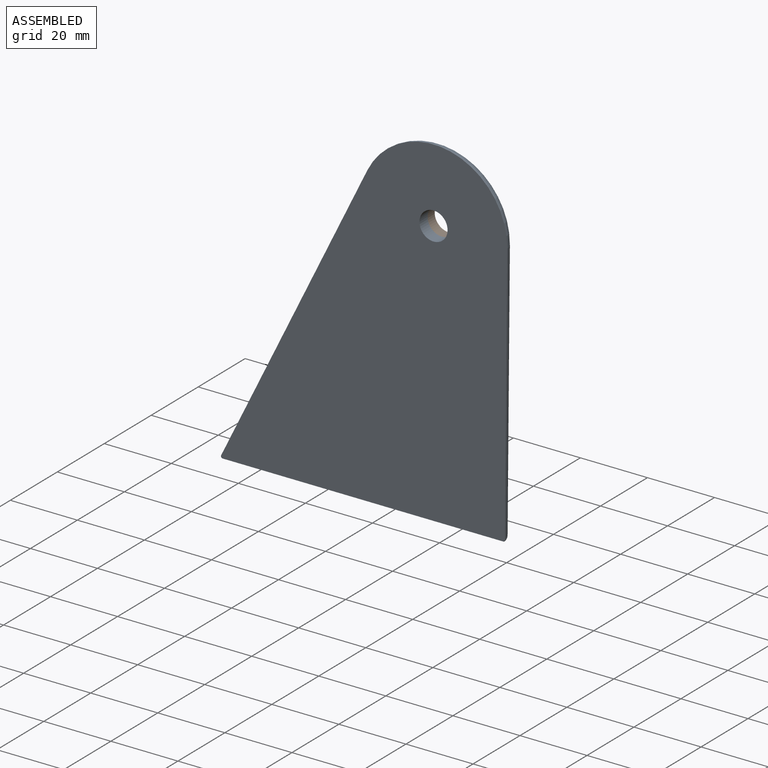
[diagram: assembled view]
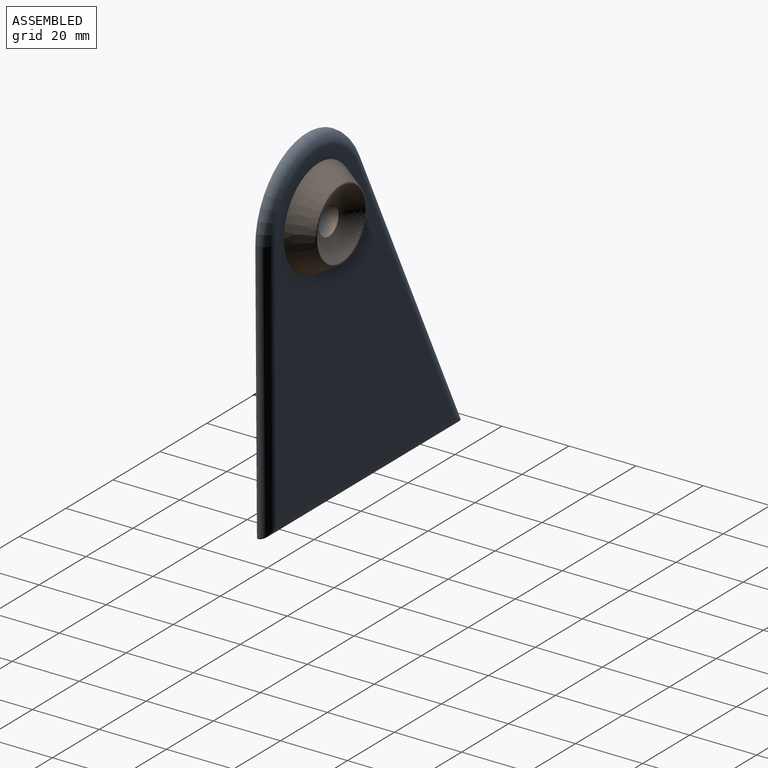
[diagram: assembled view, second angle]
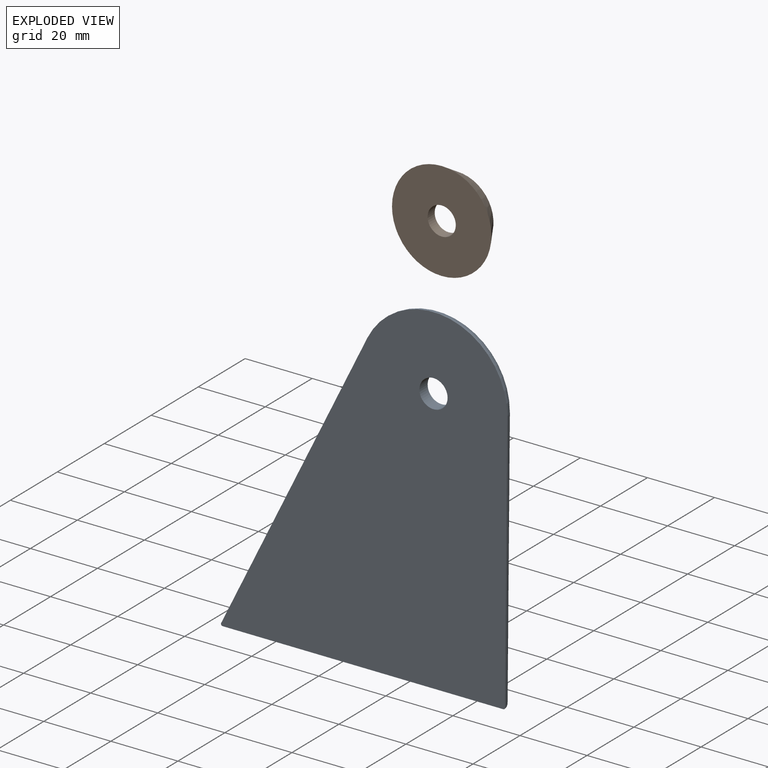
[diagram: exploded view]
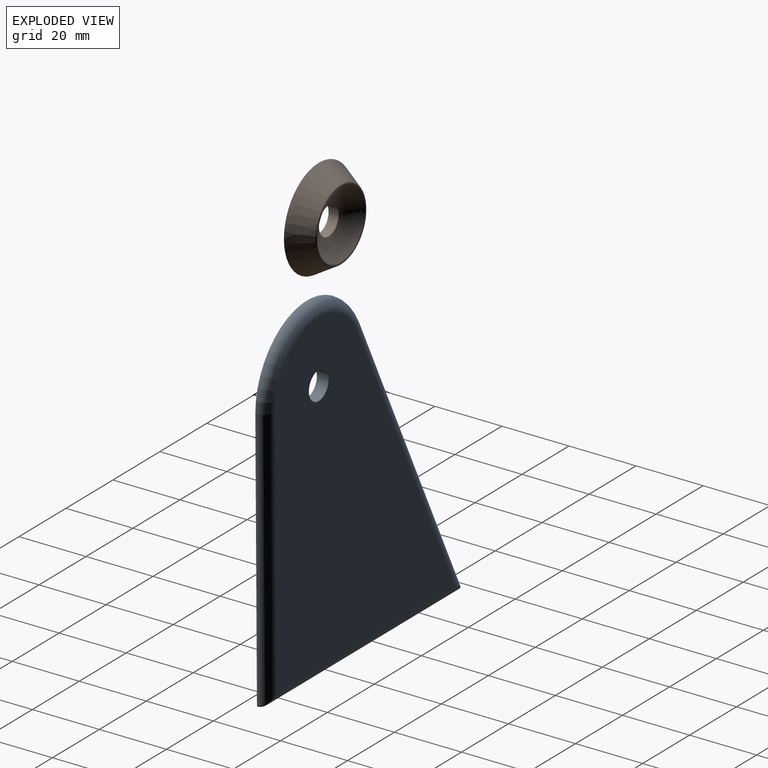
[diagram: exploded view, second angle]
ASSEMBLY  parts=2 mates=2
PART A: 9 faces, bbox 87.5x104.2x4.1 mm
  f0: cylinder r=4.2mm len=8.4mm, axis (0,0,-1), area 92.4mm2, adj f1,f2
  f1: plane 94.5x76.57mm, normal (0,0,1), area 4859.2mm2, adj f0,f3,f5,f6,f7
  f2: plane 101.52x85.4mm, normal (0,0,-1), area 5941.3mm2, adj f0,f3,f4,f5,f6,f7,f8
  f3: cylinder r=3.5mm len=90.05mm, axis (0.44,-0.9,0), area 532.8mm2, adj f1,f2,f4,f5
  f4: bspline ~5.63x4.12mm, area 4.3mm2, adj f2,f3,f6
  f5: torus R=18.5mm, axis (0,0,1), area 306.8mm2, adj f1,f2,f3,f7
  f6: cylinder r=3.5mm len=83.7mm, axis (-1,0,0), area 444.6mm2, adj f1,f2,f4,f8
  f7: cylinder r=3.5mm len=78.84mm, axis (-0.01,1,0), area 427.4mm2, adj f1,f2,f5,f8
  f8: bspline ~4.02x3.5mm, area 3mm2, adj f2,f6,f7
PART B: 5 faces, bbox 29.7x6.8x29.7 mm
  f0: revolved ~20.11x20.11mm, area 317.5mm2, adj f1,f4
  f1: torus R=10.41mm, axis (0,-1,0), area 59.2mm2, adj f0,f2
  f2: cone r=14.83mm half-angle=31.3deg, axis (0,-1,0), area 619mm2, adj f1,f3
  f3: plane 29.65x29.65mm, normal (0,-1,0), area 635.1mm2, adj f2,f4
  f4: cylinder r=4.2mm len=8.4mm, axis (0,-1,0), area 79.2mm2, adj f0,f3
PLACE A rot(axis=(-1,0,0),90deg) t=(30.89,6.63,-109.56)mm
PLACE B t=(9.58,13.13,-30.06)mm
MATE cylindrical A.f0 <-> B.f1  axis (0,-1,0) through (9.58,8.38,-30.06)mm
MATE planar B.f1 <-> A.f1  axis (0,-1,0) through (9.58,10.13,-30.06)mm
